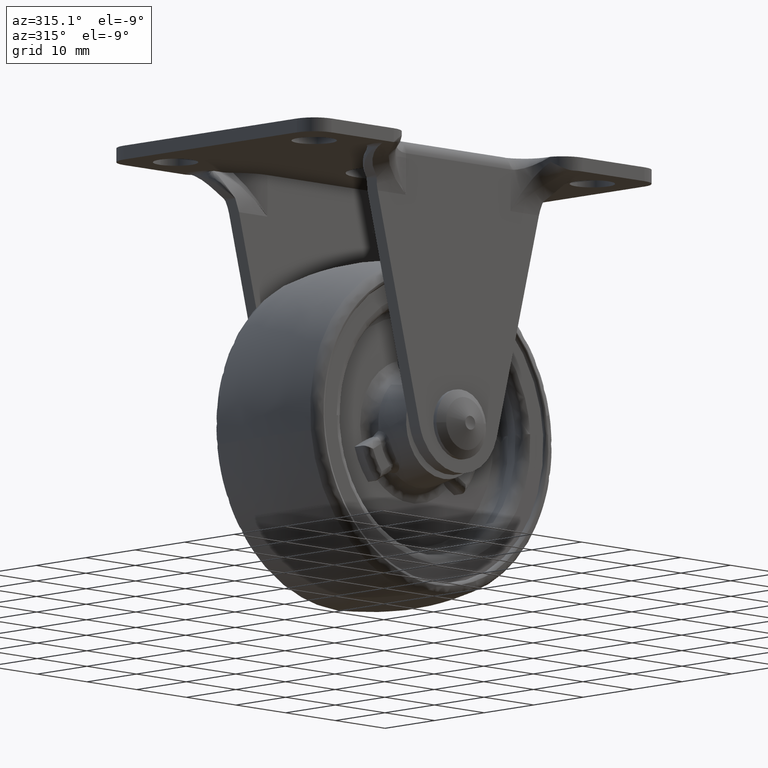
[diagram: clean part render]
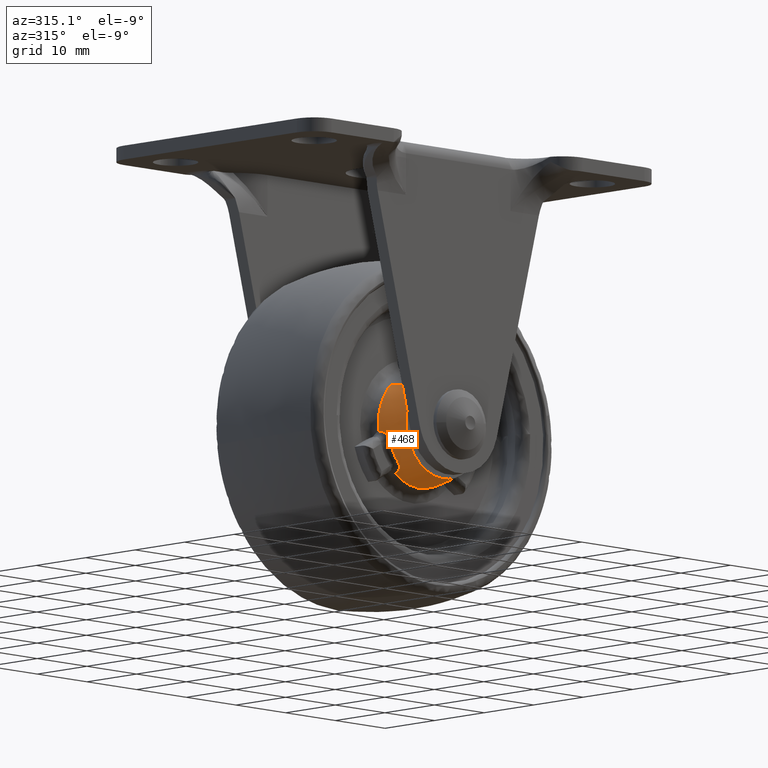
[diagram: same view with one face highlighted and labeled with its STEP entity id]
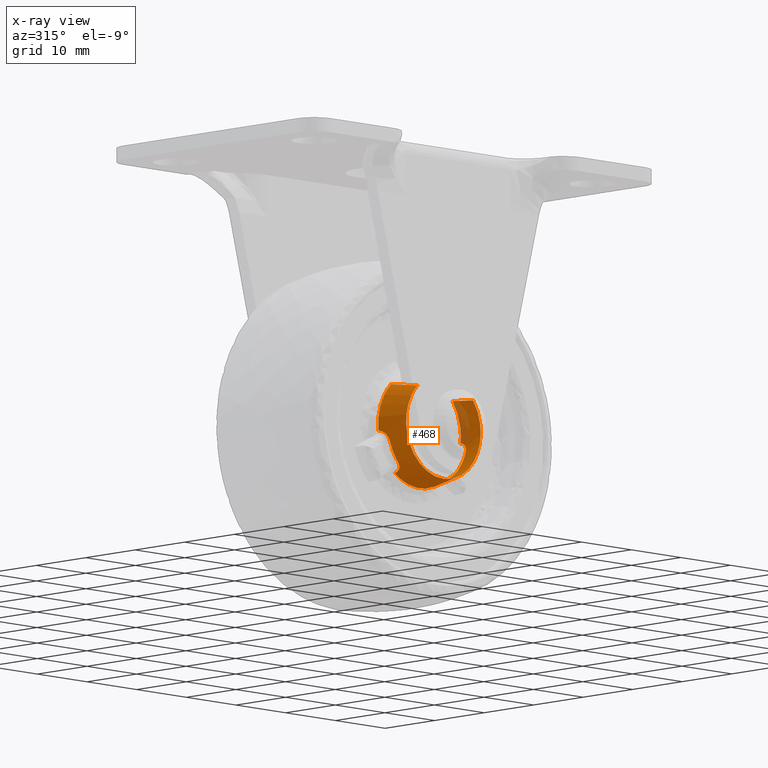
[diagram: x-ray of the same camera — body ghosted, the highlighted face saturated]
A machine part, auxiliary view. The second image highlights one B-rep face of the part: STEP entity #468.
The next image is the same camera in x-ray: the body ghosted, the highlighted face saturated — about 9% of this face is hidden behind the body in this view.
In plain terms, the highlighted face is a freeform B-spline surface patch.
Its self-contained STEP definition (entity closure, byte-faithful):
#62=CARTESIAN_POINT('',(-26.168301386444259,-11.999999999999970,-33.065052596493793));
#63=VERTEX_POINT('',#62);
#79=CARTESIAN_POINT('',(-15.004649551402339,-11.999999999998259,-33.993808093466882));
#80=VERTEX_POINT('',#79);
#94=CARTESIAN_POINT('',(-14.347284315805091,-7.164674871376109,-33.499722897016163));
#95=VERTEX_POINT('',#94);
#96=CARTESIAN_POINT('',(-15.004649551402339,-11.999999999998259,-33.993808093466882));
#97=CARTESIAN_POINT('',(-14.347284315805091,-7.164674871376109,-33.499722897016163));
#98=QUASI_UNIFORM_CURVE('',1,(#96,#97),.UNSPECIFIED.,.F.,.U.);
#99=EDGE_CURVE('',#80,#95,#98,.T.);
#192=CARTESIAN_POINT('',(-26.734984132972649,-7.164674871371027,-32.469133223497323));
#193=VERTEX_POINT('',#192);
#207=CARTESIAN_POINT('',(-26.168301386444259,-11.999999999999970,-33.065052596493793));
#208=CARTESIAN_POINT('',(-26.734984132972649,-7.164674871371027,-32.469133223497323));
#209=QUASI_UNIFORM_CURVE('',1,(#207,#208),.UNSPECIFIED.,.F.,.U.);
#210=EDGE_CURVE('',#63,#193,#209,.T.);
#215=CARTESIAN_POINT('',(-15.021083682285941,-12.120883128215590,-34.006160223387077));
#216=CARTESIAN_POINT('',(-10.527243905673018,-12.120883128215592,-39.985076541101137));
#217=CARTESIAN_POINT('',(-16.506160223387081,-12.120883128215590,-44.478916317714059));
#218=CARTESIAN_POINT('',(-22.485076541101144,-12.120883128215592,-48.972756094326975));
#219=CARTESIAN_POINT('',(-26.978916317714059,-12.120883128215590,-42.993839776612923));
#220=CARTESIAN_POINT('',(-30.980643343633876,-12.120883128215592,-37.669664415749764));
#221=CARTESIAN_POINT('',(-26.154134317780894,-12.120883128215596,-33.079950580818540));
#222=CARTESIAN_POINT('',(-14.330439331643900,-7.040769664955317,-33.487061963855851));
#223=CARTESIAN_POINT('',(-9.317501295499744,-7.040769664955317,-40.156622632211949));
#224=CARTESIAN_POINT('',(-15.987061963855851,-7.040769664955317,-45.169560668356112));
#225=CARTESIAN_POINT('',(-22.656622632211953,-7.040769664955317,-50.182498704500254));
#226=CARTESIAN_POINT('',(-27.669560668356109,-7.040769664955317,-43.512938036144149));
#227=CARTESIAN_POINT('',(-32.133540386302187,-7.040769664955318,-37.573749612811234));
#228=CARTESIAN_POINT('',(-26.749505378332323,-7.040769664955316,-32.453862789546434));
#236=(BOUNDED_SURFACE()B_SPLINE_SURFACE(2,1,((#215,#222),(#216,#223),(#217,#224),(#218,#225),(#219,#226),(#220,#227),(#221,#228)),.UNSPECIFIED.,.F.,.F.,.U.)B_SPLINE_SURFACE_WITH_KNOTS((3,2,2,3),(2,2),(0.0,13.823823928616820,27.647647857233629,40.365565871561103),(0.0,5.153057870985000),.UNSPECIFIED.)GEOMETRIC_REPRESENTATION_ITEM()RATIONAL_B_SPLINE_SURFACE(((1.0,1.0),(0.707106781186548,0.707106781186548),(1.0,1.0),(0.707106781186548,0.707106781186548),(1.0,1.0),(0.730538238691624,0.730538238691624),(0.956886118190660,0.956886118190660)))REPRESENTATION_ITEM('')SURFACE());
#237=CARTESIAN_POINT('',(-21.0,-12.0,-45.999999500000023));
#238=VERTEX_POINT('',#237);
#239=CARTESIAN_POINT('',(-21.0,-12.0,-45.999999500000023));
#240=CARTESIAN_POINT('',(-28.499999500000019,-12.0,-45.999999500000015));
#241=CARTESIAN_POINT('',(-28.499999500000008,-12.0,-38.500000000000000));
#242=CARTESIAN_POINT('',(-28.499999500000008,-11.999999999999995,-35.282354384048922));
#243=CARTESIAN_POINT('',(-26.168301386444259,-11.999999999999966,-33.065052596493793));
#251=(BOUNDED_CURVE()B_SPLINE_CURVE(2,(#239,#240,#241,#242,#243),.UNSPECIFIED.,.F.,.U.)B_SPLINE_CURVE_WITH_KNOTS((3,2,3),(0.500000000000000,0.750000000000000,0.878793876646886),.UNSPECIFIED.)CURVE()GEOMETRIC_REPRESENTATION_ITEM()RATIONAL_B_SPLINE_CURVE((1.0,0.707106781186548,1.0,0.849108587621724,0.853688294866824))REPRESENTATION_ITEM(''));
#252=EDGE_CURVE('',#238,#63,#251,.T.);
#253=ORIENTED_EDGE('',*,*,#252,.T.);
#254=ORIENTED_EDGE('',*,*,#210,.T.);
#255=CARTESIAN_POINT('',(-29.270006284827151,-7.164674871376301,-39.431876134620950));
#256=VERTEX_POINT('',#255);
#257=CARTESIAN_POINT('',(-29.270006284827161,-7.164674871376301,-39.431876134620950));
#258=CARTESIAN_POINT('',(-29.733299279451764,-7.164674871376301,-35.320346892786318));
#259=CARTESIAN_POINT('',(-26.734984132972652,-7.164674871371027,-32.469133223497323));
#267=(BOUNDED_CURVE()B_SPLINE_CURVE(2,(#257,#258,#259),.UNSPECIFIED.,.F.,.U.)B_SPLINE_CURVE_WITH_KNOTS((3,3),(0.0,0.719505837939179),.UNSPECIFIED.)CURVE()GEOMETRIC_REPRESENTATION_ITEM()RATIONAL_B_SPLINE_CURVE((1.0,0.859403172982786,0.921126821634792))REPRESENTATION_ITEM(''));
#268=EDGE_CURVE('',#256,#193,#267,.T.);
#269=ORIENTED_EDGE('',*,*,#268,.F.);
#270=CARTESIAN_POINT('',(-28.609009608798900,-8.832337435688149,-41.093078145466102));
#271=VERTEX_POINT('',#270);
#272=CARTESIAN_POINT('',(-29.270006284827151,-7.164674871376301,-39.431876134620950));
#273=CARTESIAN_POINT('',(-29.260090249008890,-7.219770656729413,-39.436194471864027));
#274=CARTESIAN_POINT('',(-29.249937364976670,-7.274711273318026,-39.442811235727333));
#275=CARTESIAN_POINT('',(-29.229351574948598,-7.383037532910324,-39.460476605446608));
#276=CARTESIAN_POINT('',(-29.218902667306160,-7.436518346704183,-39.471523057450923));
#277=CARTESIAN_POINT('',(-29.187005696153129,-7.594914230962048,-39.511244040562850));
#278=CARTESIAN_POINT('',(-29.165023375964591,-7.697799274451740,-39.546455233364838));
#279=CARTESIAN_POINT('',(-29.130387618806811,-7.847782933510076,-39.612890982208519));
#280=CARTESIAN_POINT('',(-29.118537060686641,-7.897124616066964,-39.637387536755803));
#281=CARTESIAN_POINT('',(-29.094603082517210,-7.992422585487669,-39.690054617847210));
#282=CARTESIAN_POINT('',(-29.082466255086889,-8.038619793448474,-39.718319686966218));
#283=CARTESIAN_POINT('',(-29.045362283162170,-8.172868588079478,-39.808818733207737));
#284=CARTESIAN_POINT('',(-29.019715209063730,-8.256615650186527,-39.876709215039497));
#285=CARTESIAN_POINT('',(-28.978948373091850,-8.373023055728956,-39.990315732807808));
#286=CARTESIAN_POINT('',(-28.964950866156681,-8.410301628487238,-40.030232383470143));
#287=CARTESIAN_POINT('',(-28.936621707538361,-8.480100452632804,-40.112351030694157));
#288=CARTESIAN_POINT('',(-28.922218696806201,-8.512836912922108,-40.154748479646578));
#289=CARTESIAN_POINT('',(-28.878096109114129,-8.604565027568683,-40.285883494976837));
#290=CARTESIAN_POINT('',(-28.847469733919421,-8.657138592314217,-40.378524575512557));
#291=CARTESIAN_POINT('',(-28.798849578989170,-8.722114978103175,-40.525688503970592));
#292=CARTESIAN_POINT('',(-28.782253085819882,-8.741325096403045,-40.575940554506602));
#293=CARTESIAN_POINT('',(-28.748839585541681,-8.774118776004913,-40.676848255212107));
#294=CARTESIAN_POINT('',(-28.731933012369389,-8.787827849109663,-40.727775534330704));
#295=CARTESIAN_POINT('',(-28.680520150172129,-8.820918115386835,-40.881941029513783));
#296=CARTESIAN_POINT('',(-28.645314807704160,-8.832337435688155,-40.986545834512597));
#297=CARTESIAN_POINT('',(-28.609009608798900,-8.832337435688149,-41.093078145466102));
#298=B_SPLINE_CURVE_WITH_KNOTS('',3,(#272,#273,#274,#275,#276,#277,#278,#279,#280,#281,#282,#283,#284,#285,#286,#287,#288,#289,#290,#291,#292,#293,#294,#295,#296,#297),.UNSPECIFIED.,.F.,.U.,(4,2,2,2,2,2,2,2,2,2,2,2,4),(0.0,0.062500000000002,0.125000000000004,0.250000000000010,0.312500000000011,0.375000000000013,0.500000000000016,0.562500000000016,0.625000000000017,0.750000000000017,0.812500000000014,0.875000000000012,1.0),.UNSPECIFIED.);
#299=EDGE_CURVE('',#256,#271,#298,.T.);
#300=ORIENTED_EDGE('',*,*,#299,.T.);
#301=CARTESIAN_POINT('',(-27.050181241454101,-8.832337435688149,-43.793050957703393));
#302=VERTEX_POINT('',#301);
#303=CARTESIAN_POINT('',(-28.609009608798900,-8.832337435688149,-41.093078145466102));
#304=CARTESIAN_POINT('',(-28.096443339718942,-8.832337435688149,-42.597129102586216));
#305=CARTESIAN_POINT('',(-27.050181241454091,-8.832337435688149,-43.793050957703393));
#313=(BOUNDED_CURVE()B_SPLINE_CURVE(2,(#303,#304,#305),.UNSPECIFIED.,.F.,.U.)CURVE()GEOMETRIC_REPRESENTATION_ITEM()QUASI_UNIFORM_CURVE()RATIONAL_B_SPLINE_CURVE((1.0,0.981018322906280,1.0))REPRESENTATION_ITEM(''));
#314=EDGE_CURVE('',#271,#302,#313,.T.);
#315=ORIENTED_EDGE('',*,*,#314,.T.);
#316=CARTESIAN_POINT('',(-25.942038030076851,-7.164674871376301,-45.196092680857298));
#317=VERTEX_POINT('',#316);
#318=CARTESIAN_POINT('',(-27.050181241454101,-8.832337435688149,-43.793050957703393));
#319=CARTESIAN_POINT('',(-26.976271026509320,-8.832337435688148,-43.877533461194133));
#320=CARTESIAN_POINT('',(-26.903142401641190,-8.820974362444487,-43.960488143509522));
#321=CARTESIAN_POINT('',(-26.794685579299369,-8.787625087154520,-44.082829157471892));
#322=CARTESIAN_POINT('',(-26.758636012409461,-8.773722194542877,-44.123381299660167));
#323=CARTESIAN_POINT('',(-26.687489267689589,-8.740580446182719,-44.203291605856244));
#324=CARTESIAN_POINT('',(-26.652716462824731,-8.721511972695343,-44.242286680652811));
#325=CARTESIAN_POINT('',(-26.550781322635700,-8.657189533334176,-44.356626705079428));
#326=CARTESIAN_POINT('',(-26.485975853885432,-8.604876363654670,-44.429341685734272));
#327=CARTESIAN_POINT('',(-26.393922135106081,-8.512584653234125,-44.533743888017469));
#328=CARTESIAN_POINT('',(-26.363988413750452,-8.479337638415023,-44.567896568741880));
#329=CARTESIAN_POINT('',(-26.307052206843441,-8.409452306009019,-44.633481275217157));
#330=CARTESIAN_POINT('',(-26.279935658437630,-8.372726701306833,-44.665040701305919));
#331=CARTESIAN_POINT('',(-26.202651713598559,-8.257404527280105,-44.756298946917489));
#332=CARTESIAN_POINT('',(-26.156517904717109,-8.173702200456454,-44.812603371629500));
#333=CARTESIAN_POINT('',(-26.096042128190138,-8.037949830551042,-44.890837429588423));
#334=CARTESIAN_POINT('',(-26.077541676527261,-7.991405904533755,-44.915623247641363));
#335=CARTESIAN_POINT('',(-26.044065575736369,-7.896442372914665,-44.962475686807508));
#336=CARTESIAN_POINT('',(-26.014028944504300,-7.799411789597365,-45.006718943270108));
#337=CARTESIAN_POINT('',(-25.990884899716189,-7.698360193441882,-45.046016107650587));
#338=CARTESIAN_POINT('',(-25.971255584724759,-7.595309526623601,-45.082910792393022));
#339=CARTESIAN_POINT('',(-25.963179959059740,-7.542603751996721,-45.100208904016689));
#340=CARTESIAN_POINT('',(-25.944571234315418,-7.382881019128933,-45.148093332805509));
#341=CARTESIAN_POINT('',(-25.939606826717640,-7.274628465853839,-45.174645677864483));
#342=CARTESIAN_POINT('',(-25.942038030076851,-7.164674871376301,-45.196092680857298));
#343=B_SPLINE_CURVE_WITH_KNOTS('',3,(#318,#319,#320,#321,#322,#323,#324,#325,#326,#327,#328,#329,#330,#331,#332,#333,#334,#335,#336,#337,#338,#339,#340,#341,#342),.UNSPECIFIED.,.F.,.U.,(4,2,2,2,2,2,2,2,2,1,2,2,4),(0.0,0.125000000000007,0.187500000000010,0.250000000000012,0.375000000000008,0.437500000000004,0.500000000000000,0.624999999999996,0.687499999999997,0.749999999999997,0.812499999999998,0.874999999999999,1.0),.UNSPECIFIED.);
#344=EDGE_CURVE('',#302,#317,#343,.T.);
#345=ORIENTED_EDGE('',*,*,#344,.T.);
#346=CARTESIAN_POINT('',(-16.057968451824198,-7.164674871376301,-45.196097464806812));
#347=VERTEX_POINT('',#346);
#348=CARTESIAN_POINT('',(-16.057968451824198,-7.164674871376301,-45.196097464806797));
#349=CARTESIAN_POINT('',(-21.000005006340995,-7.164674871376301,-48.843550431706625));
#350=CARTESIAN_POINT('',(-25.942038030076858,-7.164674871376301,-45.196092680857312));
#358=(BOUNDED_CURVE()B_SPLINE_CURVE(2,(#348,#349,#350),.UNSPECIFIED.,.F.,.U.)CURVE()GEOMETRIC_REPRESENTATION_ITEM()QUASI_UNIFORM_CURVE()RATIONAL_B_SPLINE_CURVE((1.0,0.804592513912167,1.0))REPRESENTATION_ITEM(''));
#359=EDGE_CURVE('',#347,#317,#358,.T.);
#360=ORIENTED_EDGE('',*,*,#359,.F.);
#361=CARTESIAN_POINT('',(-14.949823647628660,-8.832337435688149,-43.793056546126699));
#362=VERTEX_POINT('',#361);
#363=CARTESIAN_POINT('',(-16.057968451824198,-7.164674871376301,-45.196097464806812));
#364=CARTESIAN_POINT('',(-16.059186679978730,-7.219770656729414,-45.185350757261830));
#365=CARTESIAN_POINT('',(-16.058532836398371,-7.274711273318017,-45.173249719836562));
#366=CARTESIAN_POINT('',(-16.053527072468270,-7.383037532910316,-45.146589217855627));
#367=CARTESIAN_POINT('',(-16.049185018232080,-7.436518346704175,-45.132016972393330));
#368=CARTESIAN_POINT('',(-16.030734123370340,-7.594914230962041,-45.084532893515082));
#369=CARTESIAN_POINT('',(-16.011231496000569,-7.697799274451735,-45.047890049396678));
#370=CARTESIAN_POINT('',(-15.971014328361390,-7.847782933510074,-44.984676729396881));
#371=CARTESIAN_POINT('',(-15.955724968878339,-7.897124616066955,-44.962165567742147));
#372=CARTESIAN_POINT('',(-15.922080927794720,-7.992422585487654,-44.915104594088099));
#373=CARTESIAN_POINT('',(-15.903671073613090,-8.038619793448463,-44.890461258652593));
#374=CARTESIAN_POINT('',(-15.843848586512040,-8.172868588079465,-44.813078753263738));
#375=CARTESIAN_POINT('',(-15.797877241619799,-8.256615650186520,-44.756922494645863));
#376=CARTESIAN_POINT('',(-15.719874529182871,-8.373023055728948,-44.664814120178143));
#377=CARTESIAN_POINT('',(-15.692304449142890,-8.410301628487224,-44.632733598251470));
#378=CARTESIAN_POINT('',(-15.635352193831640,-8.480100452632795,-44.567140503608172));
#379=CARTESIAN_POINT('',(-15.605836431349269,-8.512836912922094,-44.533468405946891));
#380=CARTESIAN_POINT('',(-15.514331470593641,-8.604565027568672,-44.429689616459733));
#381=CARTESIAN_POINT('',(-15.449415129013030,-8.657138592314208,-44.356845857247443));
#382=CARTESIAN_POINT('',(-15.346277505912800,-8.722114978103164,-44.241157603712892));
#383=CARTESIAN_POINT('',(-15.311056200141000,-8.741325096403037,-44.201658593746558));
#384=CARTESIAN_POINT('',(-15.240374318031639,-8.774118776004908,-44.122267803323517));
#385=CARTESIAN_POINT('',(-15.204723287155460,-8.787827849109659,-44.082162641906081));
#386=CARTESIAN_POINT('',(-15.096918483038539,-8.820918115386830,-43.960555049570438));
#387=CARTESIAN_POINT('',(-15.023930735785621,-8.832337435688148,-43.877763926144873));
#388=CARTESIAN_POINT('',(-14.949823647628660,-8.832337435688149,-43.793056546126699));
#389=B_SPLINE_CURVE_WITH_KNOTS('',3,(#363,#364,#365,#366,#367,#368,#369,#370,#371,#372,#373,#374,#375,#376,#377,#378,#379,#380,#381,#382,#383,#384,#385,#386,#387,#388),.UNSPECIFIED.,.F.,.U.,(4,2,2,2,2,2,2,2,2,2,2,2,4),(0.0,0.062499999999998,0.124999999999996,0.249999999999995,0.312499999999995,0.374999999999995,0.499999999999997,0.562499999999997,0.624999999999998,0.749999999999995,0.812499999999996,0.874999999999998,1.0),.UNSPECIFIED.);
#390=EDGE_CURVE('',#347,#362,#389,.T.);
#391=ORIENTED_EDGE('',*,*,#390,.T.);
#392=CARTESIAN_POINT('',(-13.390992786376280,-8.832337435688149,-41.093085173747653));
#393=VERTEX_POINT('',#392);
#394=CARTESIAN_POINT('',(-14.949823647628669,-8.832337435688149,-43.793056546126692));
#395=CARTESIAN_POINT('',(-13.903560444716341,-8.832337435688149,-42.597135657420402));
#396=CARTESIAN_POINT('',(-13.390992786376270,-8.832337435688149,-41.093085173747653));
#404=(BOUNDED_CURVE()B_SPLINE_CURVE(2,(#394,#395,#396),.UNSPECIFIED.,.F.,.U.)CURVE()GEOMETRIC_REPRESENTATION_ITEM()QUASI_UNIFORM_CURVE()RATIONAL_B_SPLINE_CURVE((1.0,0.981018322906280,1.0))REPRESENTATION_ITEM(''));
#405=EDGE_CURVE('',#362,#393,#404,.T.);
#406=ORIENTED_EDGE('',*,*,#405,.T.);
#407=CARTESIAN_POINT('',(-12.729994617244101,-7.164674871376301,-39.431884140086702));
#408=VERTEX_POINT('',#407);
#409=CARTESIAN_POINT('',(-13.390992786376280,-8.832337435688149,-41.093085173747653));
#410=CARTESIAN_POINT('',(-13.354783899650389,-8.832337435688157,-40.986835798260941));
#411=CARTESIAN_POINT('',(-13.319507349836449,-8.820974362444488,-40.882027210223619));
#412=CARTESIAN_POINT('',(-13.267785334991199,-8.787625087154520,-40.726930339880681));
#413=CARTESIAN_POINT('',(-13.250690933123220,-8.773722194542877,-40.675434428064463));
#414=CARTESIAN_POINT('',(-13.217059950293160,-8.740580446182721,-40.573864386642441));
#415=CARTESIAN_POINT('',(-13.200675627329280,-8.721511972695348,-40.524252716870350));
#416=CARTESIAN_POINT('',(-13.152621831601010,-8.657189533334179,-40.378804283715013));
#417=CARTESIAN_POINT('',(-13.122051545493340,-8.604876363654668,-40.286323611145683));
#418=CARTESIAN_POINT('',(-13.077663445494760,-8.512584653234125,-40.154401651028337));
#419=CARTESIAN_POINT('',(-13.063053217057901,-8.479337638415023,-40.111401947542383));
#420=CARTESIAN_POINT('',(-13.034723298604060,-8.409452306009017,-40.029301392728122));
#421=CARTESIAN_POINT('',(-13.020950308085240,-8.372726701306835,-39.990038059901359));
#422=CARTESIAN_POINT('',(-12.980560321500350,-8.257404527280110,-39.877479077560281));
#423=CARTESIAN_POINT('',(-12.954866163795010,-8.173702200456454,-39.809373814739587));
#424=CARTESIAN_POINT('',(-12.917351370424900,-8.037949830551044,-39.717883226974202));
#425=CARTESIAN_POINT('',(-12.905136448168930,-7.991405904533753,-39.689468456826170));
#426=CARTESIAN_POINT('',(-12.881299096017230,-7.896442372914666,-39.637051083538552));
#427=CARTESIAN_POINT('',(-12.858001627590500,-7.799411789597362,-39.588916969616157));
#428=CARTESIAN_POINT('',(-12.835541307334360,-7.698360193441883,-39.549225056693103));
#429=CARTESIAN_POINT('',(-12.813404230578501,-7.595309526623602,-39.513778228880412));
#430=CARTESIAN_POINT('',(-12.802461439307431,-7.542603751996716,-39.498135476091221));
#431=CARTESIAN_POINT('',(-12.770296669902750,-7.382881019128929,-39.458077633336181));
#432=CARTESIAN_POINT('',(-12.749783868350530,-7.274628465853840,-39.440502157712238));
#433=CARTESIAN_POINT('',(-12.729994617244101,-7.164674871376301,-39.431884140086702));
#434=B_SPLINE_CURVE_WITH_KNOTS('',3,(#409,#410,#411,#412,#413,#414,#415,#416,#417,#418,#419,#420,#421,#422,#423,#424,#425,#426,#427,#428,#429,#430,#431,#432,#433),.UNSPECIFIED.,.F.,.U.,(4,2,2,2,2,2,2,2,2,1,2,2,4),(0.0,0.124999999999997,0.187499999999999,0.250000000000001,0.375000000000005,0.437500000000008,0.500000000000010,0.625000000000011,0.687500000000009,0.750000000000007,0.812500000000006,0.875000000000004,1.0),.UNSPECIFIED.);
#435=EDGE_CURVE('',#393,#408,#434,.T.);
#436=ORIENTED_EDGE('',*,*,#435,.T.);
#437=CARTESIAN_POINT('',(-14.347284315805092,-7.164674871376109,-33.499722897016163));
#438=CARTESIAN_POINT('',(-12.359546965368043,-7.164674871376301,-36.144346619854645));
#439=CARTESIAN_POINT('',(-12.729994617244090,-7.164674871376301,-39.431884140086702));
#447=(BOUNDED_CURVE()B_SPLINE_CURVE(2,(#437,#438,#439),.UNSPECIFIED.,.F.,.U.)B_SPLINE_CURVE_WITH_KNOTS((3,3),(0.408009779764145,1.0),.UNSPECIFIED.)CURVE()GEOMETRIC_REPRESENTATION_ITEM()RATIONAL_B_SPLINE_CURVE((0.905603411655559,0.884320679275128,1.0))REPRESENTATION_ITEM(''));
#448=EDGE_CURVE('',#95,#408,#447,.T.);
#449=ORIENTED_EDGE('',*,*,#448,.F.);
#450=ORIENTED_EDGE('',*,*,#99,.F.);
#451=CARTESIAN_POINT('',(-15.004649551402341,-11.999999999998261,-33.993808093466882));
#452=CARTESIAN_POINT('',(-13.500000499999997,-12.000000000000002,-35.995697616237550));
#453=CARTESIAN_POINT('',(-13.500000499999990,-12.0,-38.500000000000000));
#454=CARTESIAN_POINT('',(-13.500000499999990,-12.0,-45.999999500000015));
#455=CARTESIAN_POINT('',(-21.0,-12.0,-45.999999500000023));
#463=(BOUNDED_CURVE()B_SPLINE_CURVE(2,(#451,#452,#453,#454,#455),.UNSPECIFIED.,.F.,.U.)B_SPLINE_CURVE_WITH_KNOTS((3,2,3),(0.146290046017031,0.250000000000000,0.500000000000000),.UNSPECIFIED.)CURVE()GEOMETRIC_REPRESENTATION_ITEM()RATIONAL_B_SPLINE_CURVE((0.857801664357072,0.878496231019732,1.0,0.707106781186548,1.0))REPRESENTATION_ITEM(''));
#464=EDGE_CURVE('',#80,#238,#463,.T.);
#465=ORIENTED_EDGE('',*,*,#464,.T.);
#466=EDGE_LOOP('',(#253,#254,#269,#300,#315,#345,#360,#391,#406,#436,#449,#450,#465));
#467=FACE_OUTER_BOUND('',#466,.T.);
#468=ADVANCED_FACE('',(#467),#236,.T.);